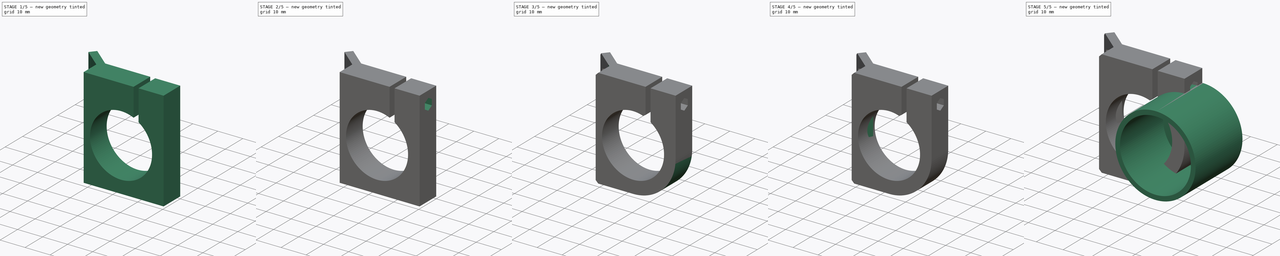
[diagram: build sequence overview — one tinted view per stage of 5, left to right]
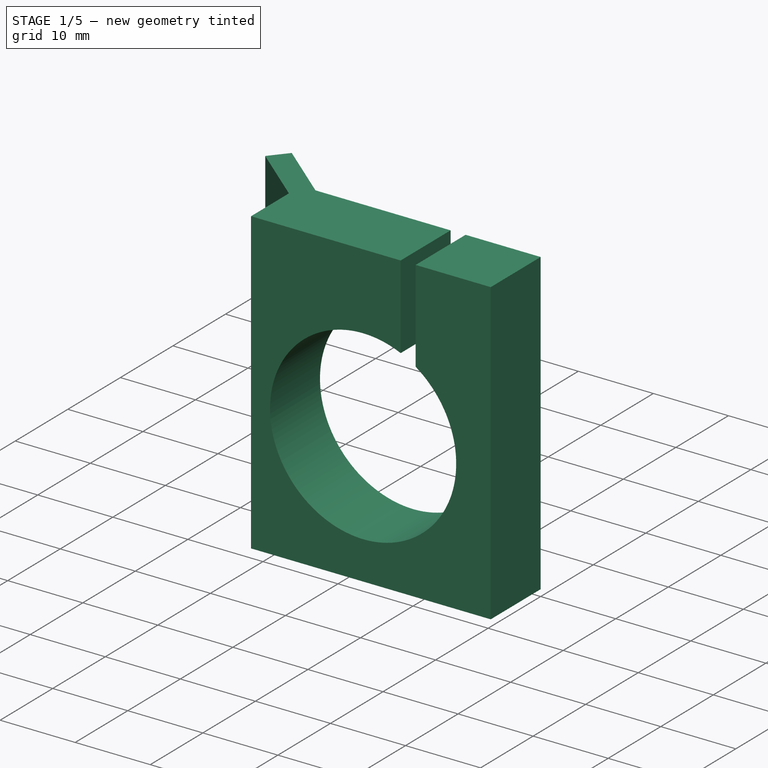
[diagram: stage 1 of 5 — iso view after this stage's code; geometry added in this stage tinted green]
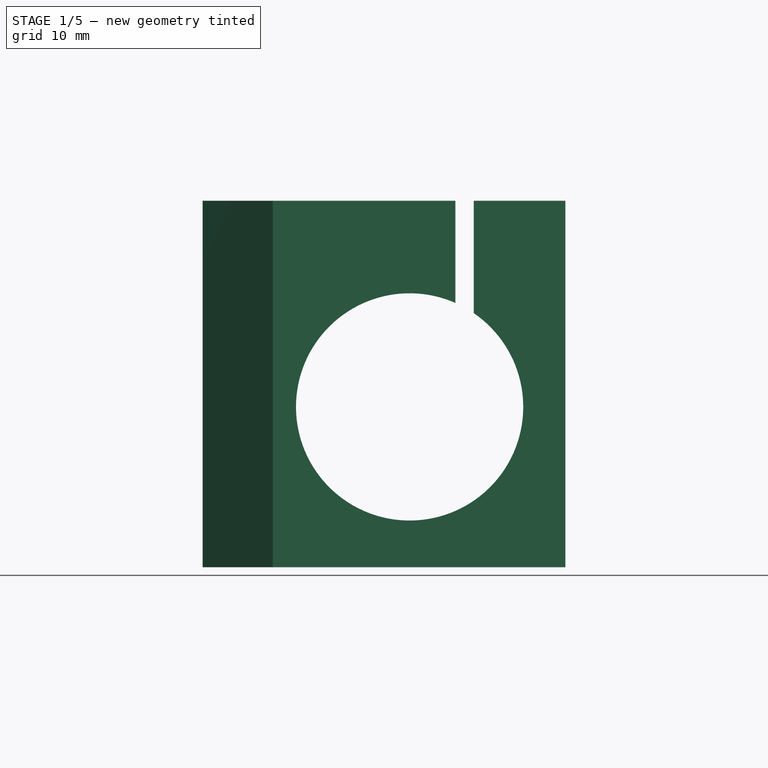
[diagram: stage 1 of 5 — front view after this stage's code; geometry added in this stage tinted green]
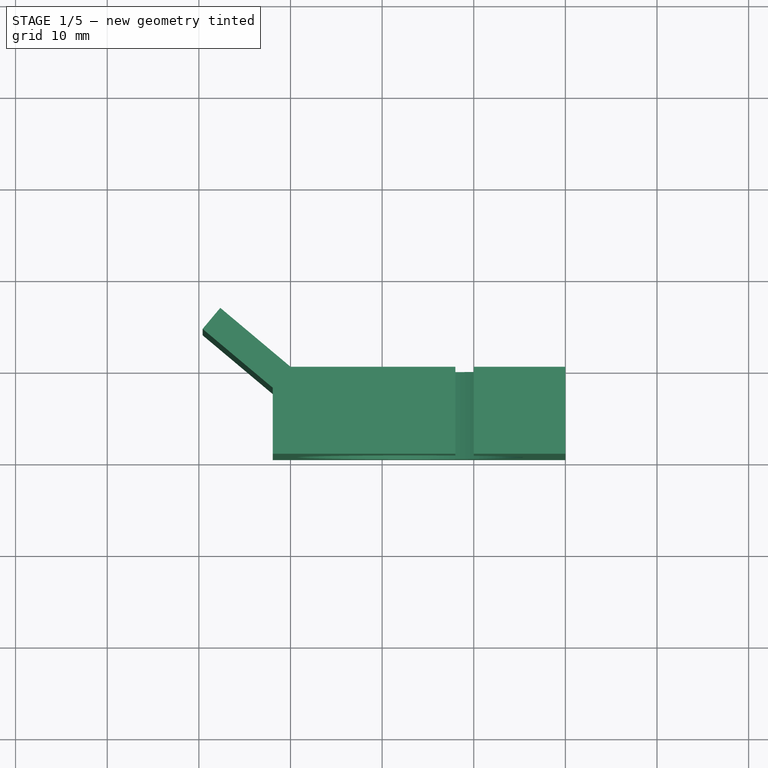
[diagram: stage 1 of 5 — top view after this stage's code; geometry added in this stage tinted green]
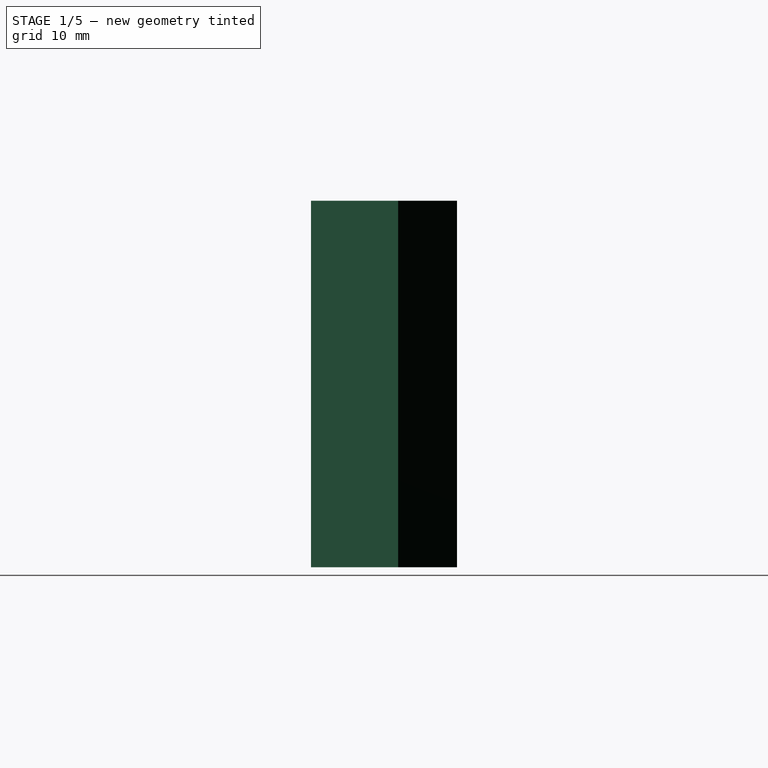
[diagram: stage 1 of 5 — right view after this stage's code; geometry added in this stage tinted green]
FCSTD DOCUMENT  (FreeCAD 0.19R)
Label: FrontStemMount
License: All rights reserved
LicenseURL: http://en.wikipedia.org/wiki/All_rights_reserved
objects: Sketcher::SketchObject×10, PartDesign::Pocket×7, PartDesign::Chamfer×5, PartDesign::Pad×3, PartDesign::Body×2, PartDesign::Fillet×1
note: 44 computed .brp shape members not serialized (recipe doc carries the construction recipe); baked Part::Feature solids carry a one-line shape summary decoded from their .brp

FEATURE [PartDesign::Body] Body
  Group = -> [Sketch,Pad,Sketch001,Pocket,Sketch002,Pocket001]
  Origin = -> Origin
  Tip = -> Pocket001
FEATURE [Sketcher::SketchObject] Sketch003
  FullyConstrained = true
  MapMode = 5
  Support = -> [XY_Plane001]
  sketch-geometry (7):
    g0: LineSegment StartX=-39.5888 StartY=4.12974 StartZ=0 EndX=-31.9284 EndY=-2.29813 EndZ=0
    g1: LineSegment StartX=-31.9284 StartY=-2.29813 StartZ=0 EndX=-31.9284 EndY=-9.5 EndZ=0
    g2: LineSegment StartX=-30 StartY=0 StartZ=0 EndX=-37.6604 EndY=6.42788 EndZ=0
    g3: LineSegment StartX=-37.6604 StartY=6.42788 StartZ=0 EndX=-39.5888 EndY=4.12974 EndZ=0
    g4: LineSegment StartX=-31.9284 StartY=-9.5 StartZ=0 EndX=0 EndY=-9.5 EndZ=0
    g5: LineSegment StartX=0 StartY=-9.5 StartZ=0 EndX=0 EndY=0 EndZ=0
    g6: LineSegment StartX=-30 StartY=0 StartZ=0 EndX=0 EndY=0 EndZ=0
  constraints (20):
    c: Coincident(g0,g1)
    c: Vertical(g1)
    c: Coincident(g2,g3)
    c: Coincident(g3,g0)
    c: Distance(g3) = 3
    c: Parallel(g2,g0)
    c: Perpendicular(g0,g3)
    c: Distance(g0) = 10
    c: Equal(g2,g0)
    c: Angle(g0) = -0.698132
    c: Coincident(g1,g4)
    c: Coincident(g4,g5)
    c: Vertical(g5)
    c: PointOnObject(g2,g-1)
    c: Coincident(g5,g-1)
    c: Coincident(g6,g5)
    c: Distance(g5) = 9.5
    c: Horizontal(g4)
    c: Coincident(g6,g2)
    c: Distance(g6) = 30
FEATURE [PartDesign::Pad] Pad001
  Direction = (1,1,1)
  Length = 40
  Length2 = 100
  Midplane = true
  Profile = -> Sketch003
  Type = 0
FEATURE [Sketcher::SketchObject] Sketch005
  FullyConstrained = true
  MapMode = 5
  Placement = pos=(0,0,0) rot=(0,0.707107,0.707107;3.14159rad)
  sketch-geometry (1):
    g0: Circle CenterX=17 CenterY=-2.5 CenterZ=0 NormalX=0 NormalY=0 NormalZ=1 AngleXU=0 Radius=12.4
  constraints (3):
    c: Diameter(g0) = 24.8
    c: DistanceX(g0) = 17
    c: DistanceY(g0) = -2.5
FEATURE [PartDesign::Pocket] Pocket002
  BaseFeature = -> Pad001
  Length = 5
  Length2 = 100
  Profile = -> Sketch005
  Type = 1
FEATURE [Sketcher::SketchObject] Sketch006
  FullyConstrained = false
  MapMode = 5
  Placement = pos=(0,0,0) rot=(0,0.707107,0.707107;3.14159rad)
  Support = -> [Pocket002]
  sketch-geometry (4):
    g0: LineSegment StartX=10 StartY=22.6764 StartZ=0 EndX=12 EndY=22.6764 EndZ=0
    g1: LineSegment StartX=12 StartY=22.6764 StartZ=0 EndX=12 EndY=5.62862 EndZ=0
    g2: LineSegment StartX=12 StartY=5.62862 StartZ=0 EndX=10 EndY=5.62862 EndZ=0
    g3: LineSegment StartX=10 StartY=5.62862 StartZ=0 EndX=10 EndY=22.6764 EndZ=0
  constraints (10):
    c: Coincident(g0,g1)
    c: Coincident(g1,g2)
    c: Coincident(g2,g3)
    c: Coincident(g3,g0)
    c: Horizontal(g0)
    c: Horizontal(g2)
    c: Vertical(g1)
    c: Vertical(g3)
    c: Distance(g0) = 2
    c: DistanceX(g0) = 10
FEATURE [PartDesign::Pocket] Pocket003
  BaseFeature = -> Pocket002
  Length = 5
  Length2 = 100
  Profile = -> Sketch006
  Type = 1
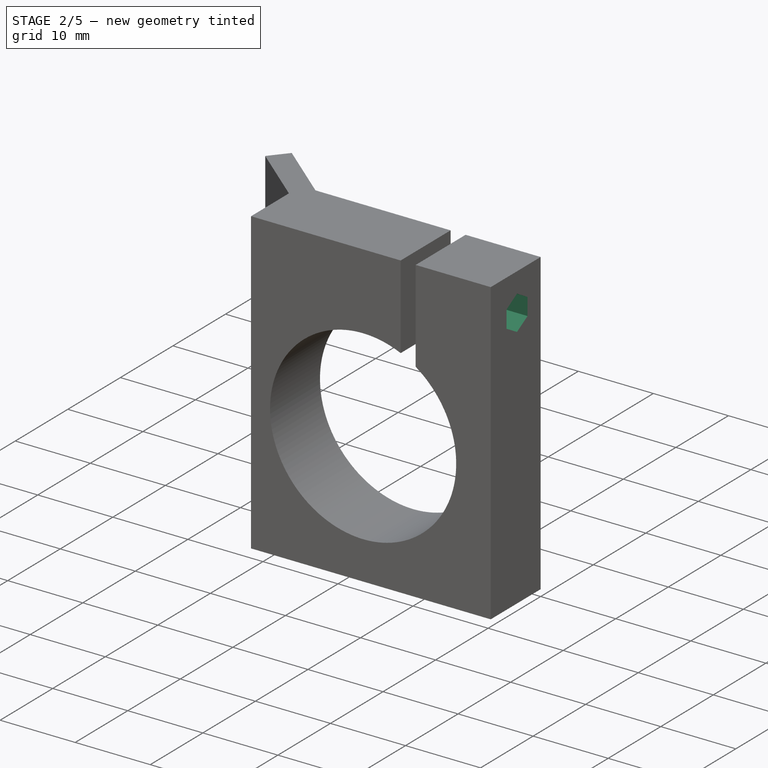
[diagram: stage 2 of 5 — iso view after this stage's code; geometry added in this stage tinted green]
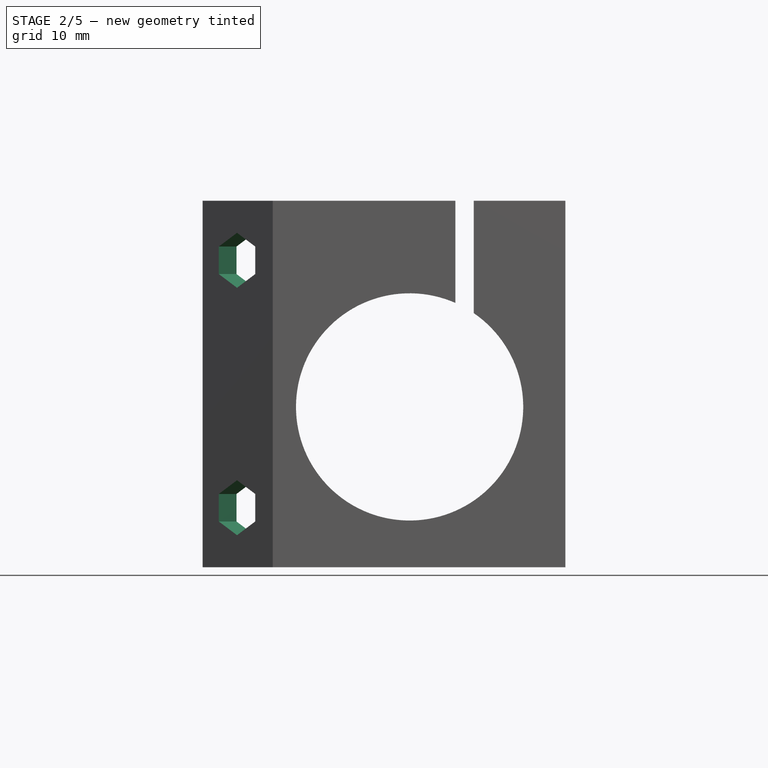
[diagram: stage 2 of 5 — front view after this stage's code; geometry added in this stage tinted green]
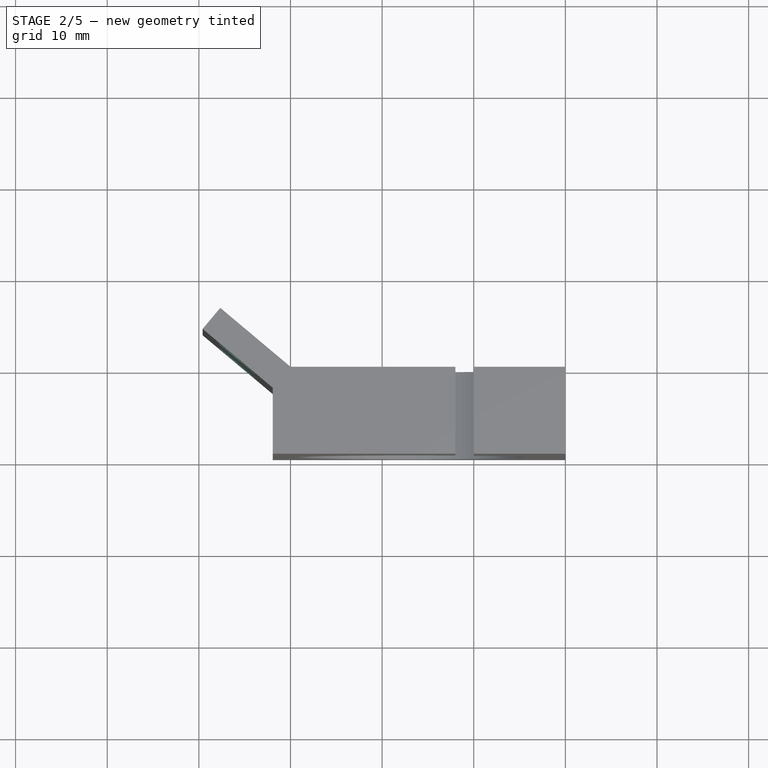
[diagram: stage 2 of 5 — top view after this stage's code; geometry added in this stage tinted green]
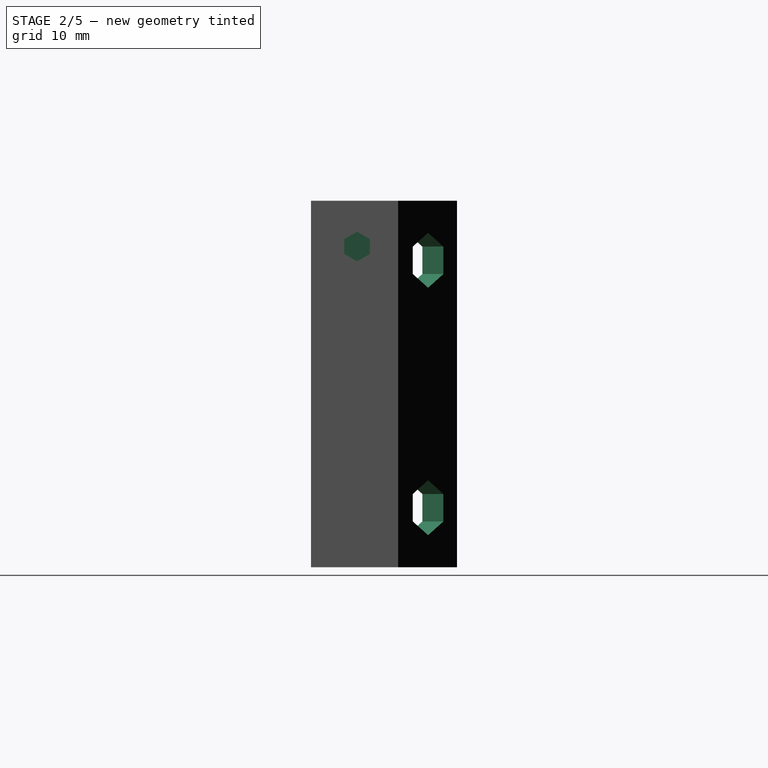
[diagram: stage 2 of 5 — right view after this stage's code; geometry added in this stage tinted green]
FEATURE [Sketcher::SketchObject] Sketch007
  FullyConstrained = true
  MapMode = 5
  Placement = pos=(0,0,0) rot=(0.57735,0.57735,0.57735;2.0944rad)
  Support = -> [Pocket003]
  sketch-geometry (7):
    g0: LineSegment StartX=-4.5 StartY=12.6906 StartZ=0 EndX=-2.5 EndY=13.8453 EndZ=0
    g1: LineSegment StartX=-2.5 StartY=13.8453 StartZ=0 EndX=-2.5 EndY=16.1547 EndZ=0
    g2: LineSegment StartX=-2.5 StartY=16.1547 StartZ=0 EndX=-4.5 EndY=17.3094 EndZ=0
    g3: LineSegment StartX=-4.5 StartY=17.3094 StartZ=0 EndX=-6.5 EndY=16.1547 EndZ=0
    g4: LineSegment StartX=-6.5 StartY=16.1547 StartZ=0 EndX=-6.5 EndY=13.8453 EndZ=0
    g5: LineSegment StartX=-6.5 StartY=13.8453 StartZ=0 EndX=-4.5 EndY=12.6906 EndZ=0
    g6: Circle CenterX=-4.5 CenterY=15 CenterZ=0 NormalX=0 NormalY=0 NormalZ=1 AngleXU=0 Radius=2.3094
  constraints (17):
    c: Coincident(g0,g1)
    c: Coincident(g1,g2)
    c: Coincident(g2,g3)
    c: Coincident(g3,g4)
    c: Coincident(g4,g5)
    c: Coincident(g5,g0)
    c: Equal(g0, g1-g5) x5
    c: PointOnObject(g0,g6)
    c: PointOnObject(g1,g6)
    c: PointOnObject(g2,g6)
    c: PointOnObject(g3,g6)
    c: PointOnObject(g4,g6)
    c: PointOnObject(g5,g6)
    c: Vertical(g1)
    c: DistanceX(g6) = -4.5
    c: Distance(g1,g3) = 4
    c: DistanceY(g6) = 15
FEATURE [PartDesign::Pocket] Pocket004
  BaseFeature = -> Pocket003
  Length = 11
  Length2 = 100
  Profile = -> Sketch007
  Type = 0
FEATURE [Sketcher::SketchObject] Sketch008
  FullyConstrained = false
  MapMode = 5
  Placement = pos=(0,0,0) rot=(0.57735,0.57735,0.57735;2.0944rad)
  Support = -> [Pocket004]
  sketch-geometry (7):
    g0: LineSegment StartX=-4.47412 StartY=13.3834 StartZ=0 EndX=-3.07412 EndY=14.1917 EndZ=0
    g1: LineSegment StartX=-3.07412 StartY=14.1917 StartZ=0 EndX=-3.07412 EndY=15.8083 EndZ=0
    g2: LineSegment StartX=-3.07412 StartY=15.8083 StartZ=0 EndX=-4.47412 EndY=16.6166 EndZ=0
    g3: LineSegment StartX=-4.47412 StartY=16.6166 StartZ=0 EndX=-5.87412 EndY=15.8083 EndZ=0
    g4: LineSegment StartX=-5.87412 StartY=15.8083 StartZ=0 EndX=-5.87412 EndY=14.1917 EndZ=0
    g5: LineSegment StartX=-5.87412 StartY=14.1917 StartZ=0 EndX=-4.47412 EndY=13.3834 EndZ=0
    g6: Circle CenterX=-4.47412 CenterY=15 CenterZ=0 NormalX=0 NormalY=0 NormalZ=1 AngleXU=0 Radius=1.61658
  constraints (16):
    c: Coincident(g0,g1)
    c: Coincident(g1,g2)
    c: Coincident(g2,g3)
    c: Coincident(g3,g4)
    c: Coincident(g4,g5)
    c: Coincident(g5,g0)
    c: Equal(g0, g1-g5) x5
    c: PointOnObject(g0,g6)
    c: PointOnObject(g1,g6)
    c: PointOnObject(g2,g6)
    c: PointOnObject(g3,g6)
    c: PointOnObject(g4,g6)
    c: PointOnObject(g5,g6)
    c: Vertical(g4)
    c: Distance(g1,g3) = 2.8
    c: DistanceY(g6) = 15
FEATURE [PartDesign::Pocket] Pocket005
  BaseFeature = -> Pocket004
  Length = 25
  Length2 = 100
  Profile = -> Sketch008
  Type = 0
FEATURE [Sketcher::SketchObject] Sketch004
  ExternalGeometry = -> [Pocket005]
  FullyConstrained = true
  MapMode = 5
  Placement = pos=(-14.3236,-17.0702,0) rot=(0.889126,-0.323616,-0.323616;1.68804rad)
  Support = -> [Pocket005]
  sketch-geometry (14):
    g0: LineSegment StartX=-28.0794 StartY=10.5 StartZ=0 EndX=-25.4813 EndY=12 EndZ=0
    g1: LineSegment StartX=-25.4813 StartY=12 StartZ=0 EndX=-25.4813 EndY=15 EndZ=0
    g2: LineSegment StartX=-25.4813 StartY=15 StartZ=0 EndX=-28.0794 EndY=16.5 EndZ=0
    g3: LineSegment StartX=-28.0794 StartY=16.5 StartZ=0 EndX=-30.6775 EndY=15 EndZ=0
    g4: LineSegment StartX=-30.6775 StartY=15 StartZ=0 EndX=-30.6775 EndY=12 EndZ=0
    g5: LineSegment StartX=-30.6775 StartY=12 StartZ=0 EndX=-28.0794 EndY=10.5 EndZ=0
    g6: Circle CenterX=-28.0794 CenterY=13.5 CenterZ=0 NormalX=0 NormalY=0 NormalZ=1 AngleXU=0 Radius=3
    g7: LineSegment StartX=-28.0794 StartY=-16.5 StartZ=0 EndX=-25.4813 EndY=-15 EndZ=0
    g8: LineSegment StartX=-25.4813 StartY=-15 StartZ=0 EndX=-25.4813 EndY=-12 EndZ=0
    g9: LineSegment StartX=-25.4813 StartY=-12 StartZ=0 EndX=-28.0794 EndY=-10.5 EndZ=0
    g10: LineSegment StartX=-28.0794 StartY=-10.5 StartZ=0 EndX=-30.6775 EndY=-12 EndZ=0
    g11: LineSegment StartX=-30.6775 StartY=-12 StartZ=0 EndX=-30.6775 EndY=-15 EndZ=0
    g12: LineSegment StartX=-30.6775 StartY=-15 StartZ=0 EndX=-28.0794 EndY=-16.5 EndZ=0
    g13: Circle CenterX=-28.0794 CenterY=-13.5 CenterZ=0 NormalX=0 NormalY=0 NormalZ=1 AngleXU=0 Radius=3
  constraints (33):
    c: Coincident(g0,g1)
    c: Coincident(g1,g2)
    c: Coincident(g2,g3)
    c: Coincident(g3,g4)
    c: Coincident(g4,g5)
    c: Coincident(g5,g0)
    c: Equal(g0, g1-g5) x5
    c: PointOnObject(g0,g6)
    c: PointOnObject(g1,g6)
    c: PointOnObject(g2,g6)
    c: PointOnObject(g3,g6)
    c: PointOnObject(g4,g6)
    c: PointOnObject(g5,g6)
    c: Coincident(g7,g8)
    c: Coincident(g8,g9)
    c: Coincident(g9,g10)
    c: Coincident(g10,g11)
    c: Coincident(g11,g12)
    c: Coincident(g12,g7)
    c: Equal(g7, g8-g12) x5
    c: PointOnObject(g7,g13)
    c: PointOnObject(g8,g13)
    c: PointOnObject(g9,g13)
    c: PointOnObject(g10,g13)
    c: PointOnObject(g11,g13)
    c: PointOnObject(g12,g13)
    c: Symmetric(g13,g6,g-1)
    c: Diameter(g6) = 6
    c: Equal(g6,g13)
    c: Vertical(g1)
    c: Vertical(g8)
    c: Distance(g13,g6) = 27
    c: Distance(g0,g-3) = 2.5
FEATURE [PartDesign::Pocket] Pocket006
  BaseFeature = -> Pocket005
  Length = 5
  Length2 = 100
  Profile = -> Sketch004
  Type = 0
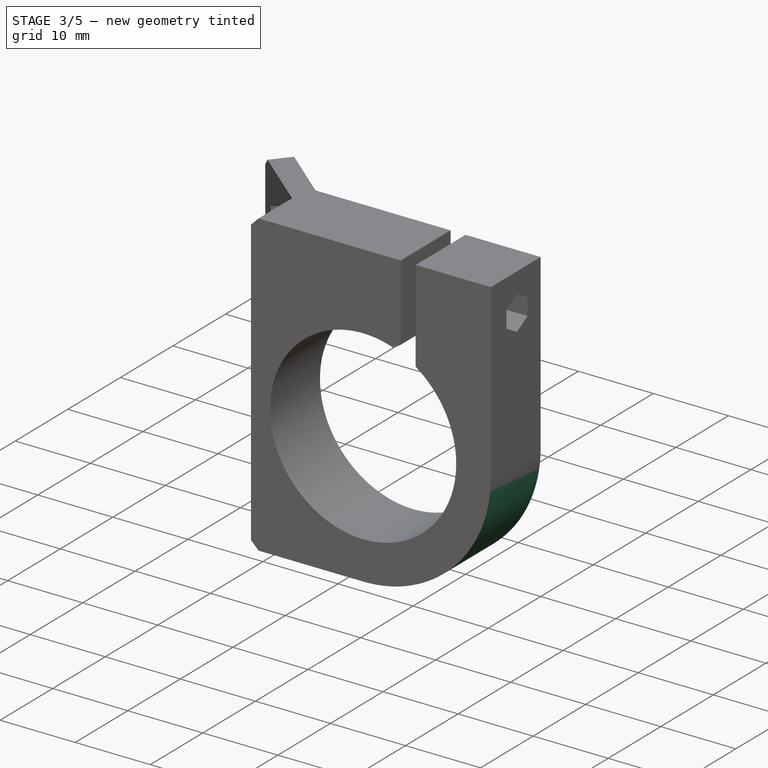
[diagram: stage 3 of 5 — iso view after this stage's code; geometry added in this stage tinted green]
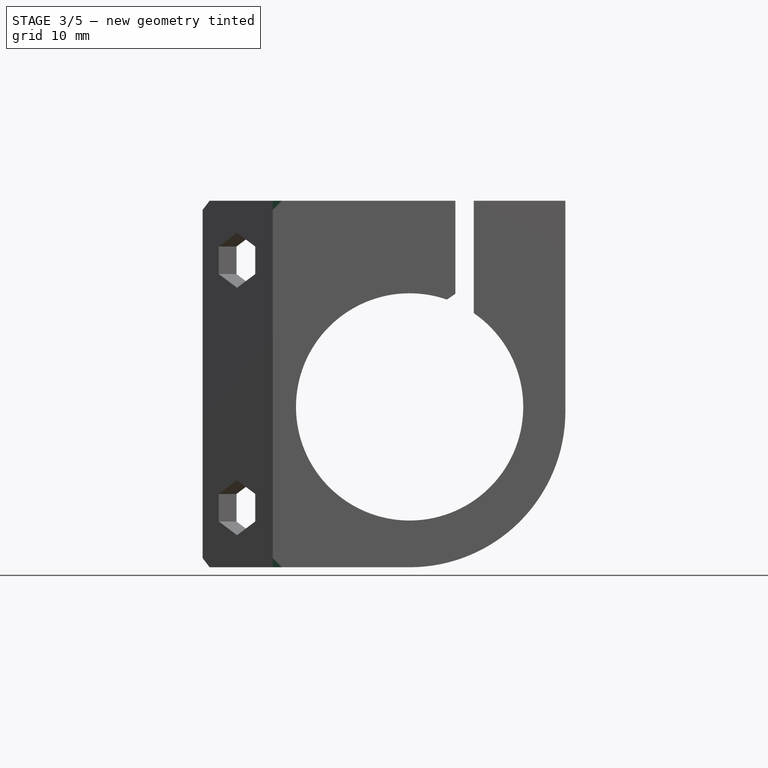
[diagram: stage 3 of 5 — front view after this stage's code; geometry added in this stage tinted green]
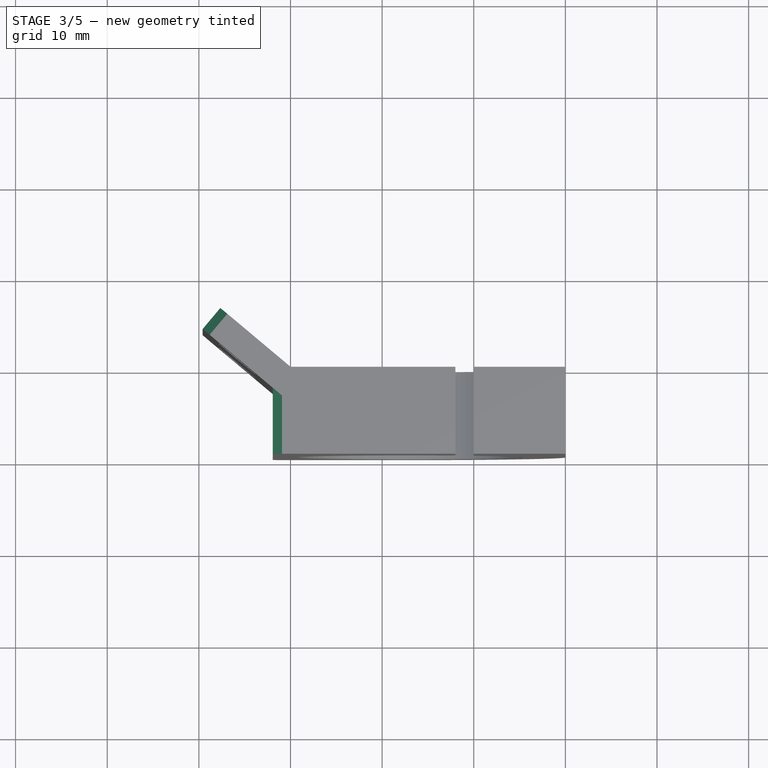
[diagram: stage 3 of 5 — top view after this stage's code; geometry added in this stage tinted green]
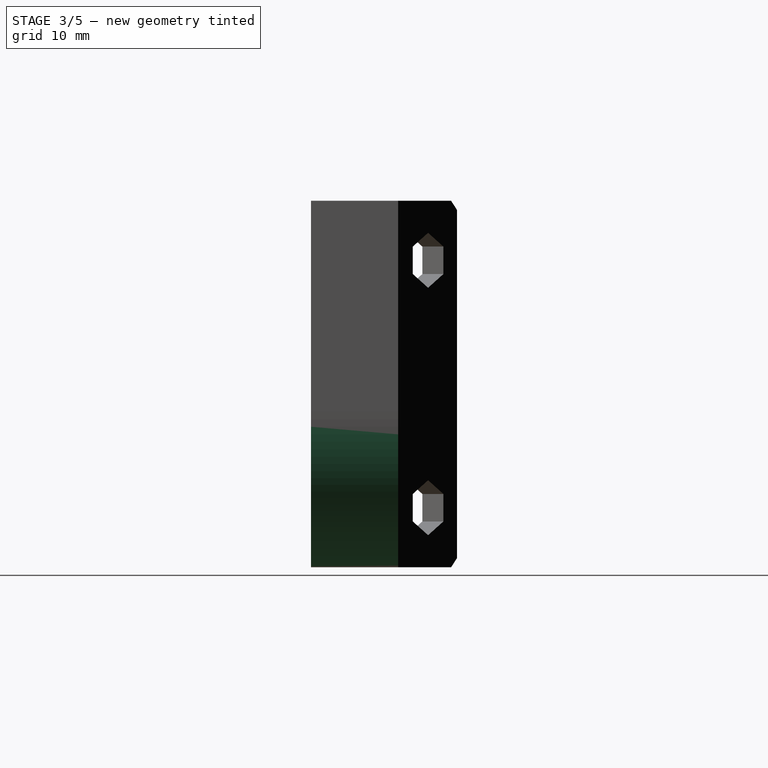
[diagram: stage 3 of 5 — right view after this stage's code; geometry added in this stage tinted green]
FEATURE [PartDesign::Fillet] Fillet
  Base = -> Pocket006 [Edge29]
  BaseFeature = -> Pocket006
  Radius = 17
  SupportTransform = false
FEATURE [PartDesign::Chamfer] Chamfer
  Angle = 45
  Base = -> Fillet [Edge16,Edge45]
  BaseFeature = -> Fillet
  ChamferType = 0
  FlipDirection = false
  Size = 1
  Size2 = 1
  SupportTransform = false
FEATURE [PartDesign::Chamfer] Chamfer001
  Angle = 45
  Base = -> Chamfer [Edge3,Edge28]
  BaseFeature = -> Chamfer
  ChamferType = 0
  FlipDirection = false
  Size = 1
  Size2 = 1
  SupportTransform = false
FEATURE [PartDesign::Chamfer] Chamfer002
  Angle = 45
  Base = -> Chamfer001 [Edge87]
  BaseFeature = -> Chamfer001
  ChamferType = 0
  FlipDirection = false
  Size = 1
  Size2 = 1
  SupportTransform = false
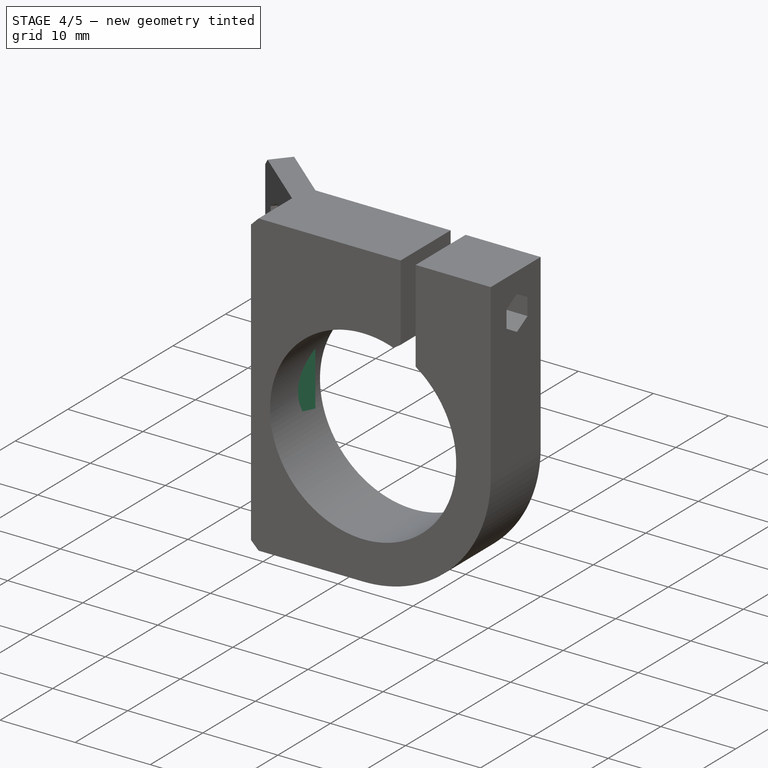
[diagram: stage 4 of 5 — iso view after this stage's code; geometry added in this stage tinted green]
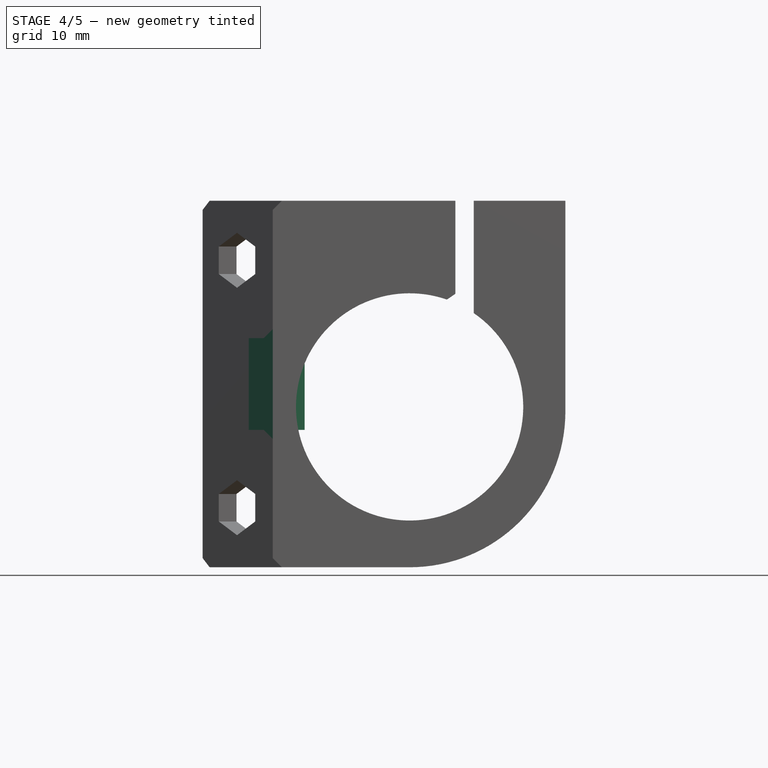
[diagram: stage 4 of 5 — front view after this stage's code; geometry added in this stage tinted green]
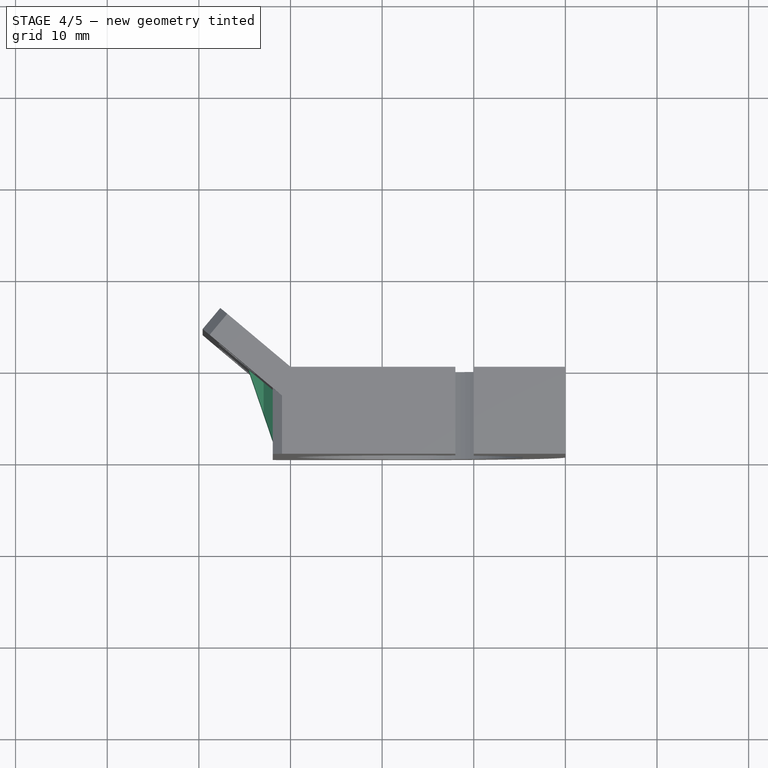
[diagram: stage 4 of 5 — top view after this stage's code; geometry added in this stage tinted green]
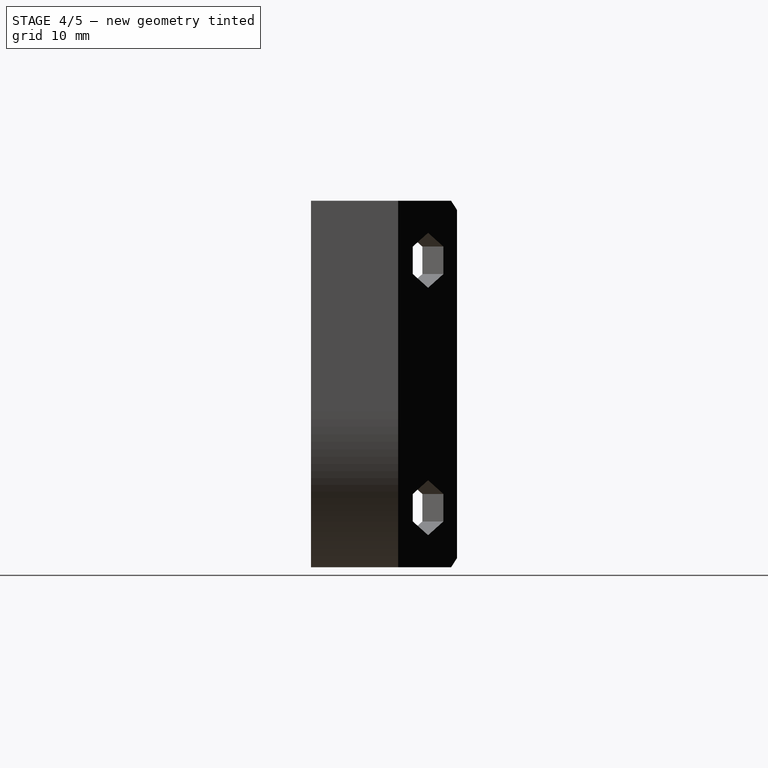
[diagram: stage 4 of 5 — right view after this stage's code; geometry added in this stage tinted green]
FEATURE [Sketcher::SketchObject] Sketch009
  FullyConstrained = false
  MapMode = 5
  Support = -> [XY_Plane001]
  sketch-geometry (3):
    g0: LineSegment StartX=-34.7959 StartY=0.607884 StartZ=0 EndX=-31.5821 EndY=-8.77433 EndZ=0
    g1: LineSegment StartX=-31.5821 StartY=-8.77433 StartZ=0 EndX=-28.4564 EndY=-2.21608 EndZ=0
    g2: LineSegment StartX=-28.4564 StartY=-2.21608 StartZ=0 EndX=-34.7959 EndY=0.607884 EndZ=0
  constraints (3):
    c: Coincident(g0,g1)
    c: Coincident(g1,g2)
    c: Coincident(g2,g0)
FEATURE [PartDesign::Pad] Pad002
  BaseFeature = -> Chamfer002
  Direction = (1,1,1)
  Length = 10
  Length2 = 100
  Midplane = true
  Profile = -> Sketch009
  Type = 0
FEATURE [PartDesign::Chamfer] Chamfer003
  Angle = 45
  Base = -> Pad002 [Edge45]
  BaseFeature = -> Pad002
  ChamferType = 0
  FlipDirection = false
  Size = 1
  Size2 = 1
  SupportTransform = false
FEATURE [PartDesign::Chamfer] Chamfer004
  Angle = 45
  Base = -> Chamfer003 [Edge8]
  BaseFeature = -> Chamfer003
  ChamferType = 0
  FlipDirection = false
  Size = 1
  Size2 = 1
  SupportTransform = false
FEATURE [PartDesign::Body] Body001
  Group = -> [Sketch003,Pad001,Sketch004,Sketch005,Pocket002,Sketch006,Pocket003,Sketch007,Pocket004,Sketch008,Pocket005,Pocket006,Fillet,Chamfer,Chamfer001,Chamfer002,Sketch009,Pad002,Chamfer003,Chamfer004]
  Origin = -> Origin001
  Tip = -> Chamfer004
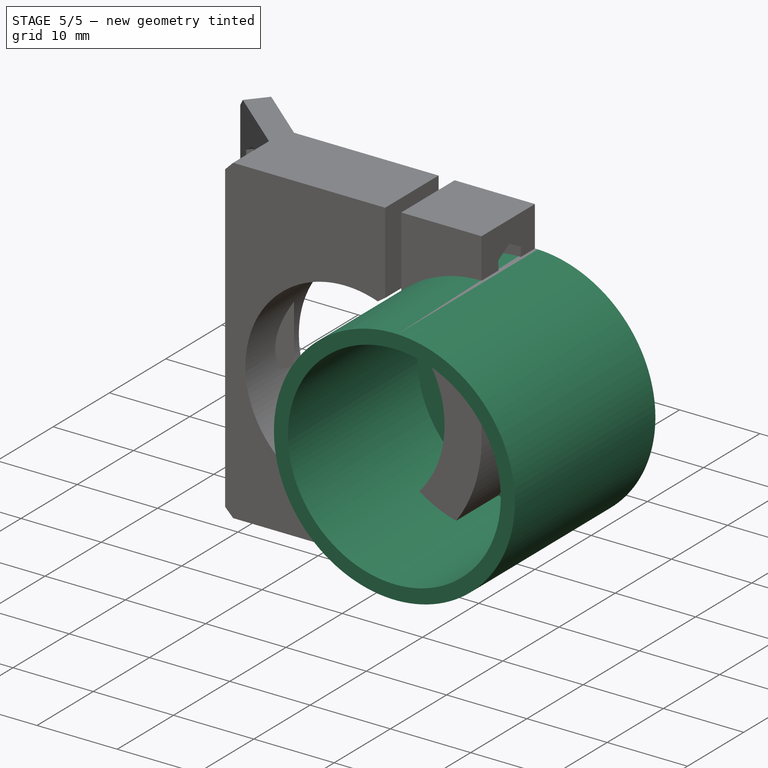
[diagram: stage 5 of 5 — iso view after this stage's code; geometry added in this stage tinted green]
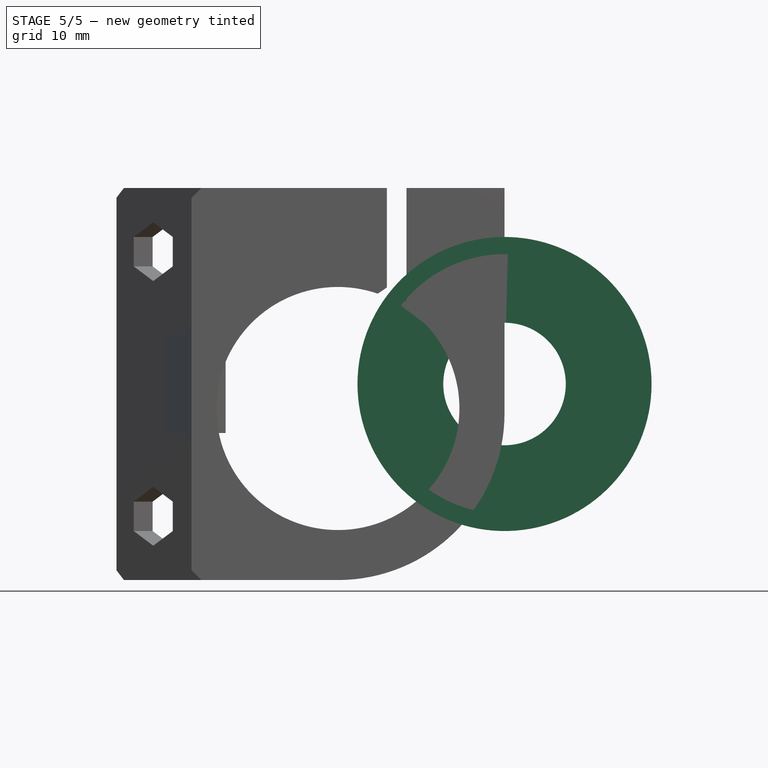
[diagram: stage 5 of 5 — front view after this stage's code; geometry added in this stage tinted green]
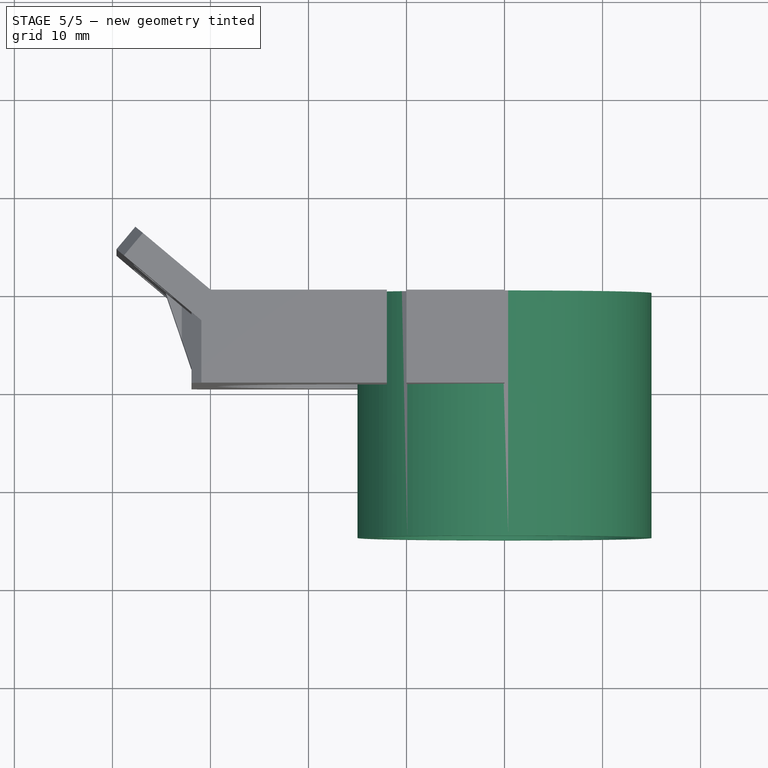
[diagram: stage 5 of 5 — top view after this stage's code; geometry added in this stage tinted green]
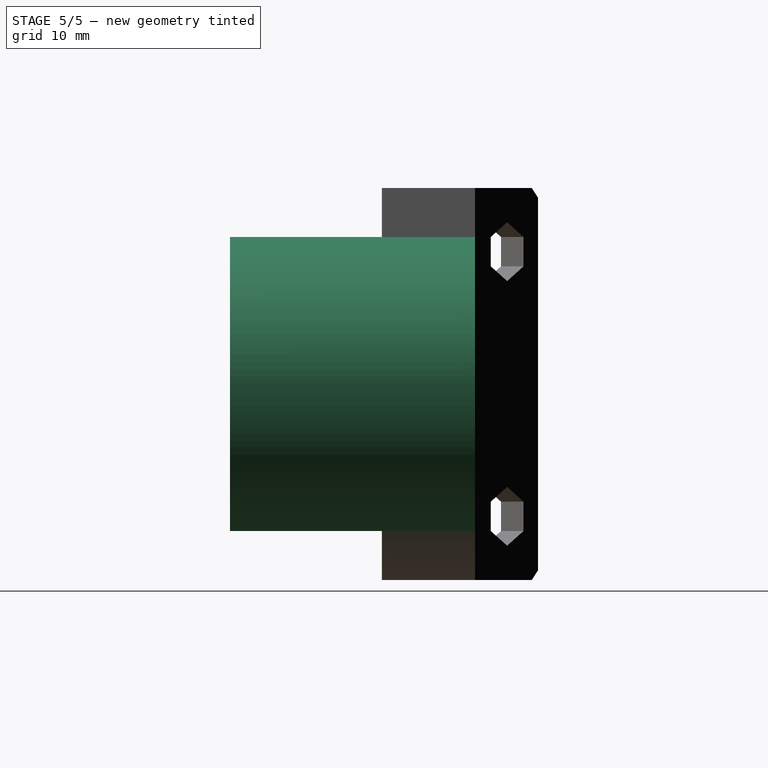
[diagram: stage 5 of 5 — right view after this stage's code; geometry added in this stage tinted green]
FEATURE [Sketcher::SketchObject] Sketch
  FullyConstrained = true
  MapMode = 5
  Placement = pos=(0,0,0) rot=(1,0,0;1.5708rad)
  Support = -> [XZ_Plane]
  sketch-geometry (1):
    g0: Circle CenterX=0 CenterY=0 CenterZ=0 NormalX=0 NormalY=0 NormalZ=1 AngleXU=0 Radius=15
  constraints (2):
    c: Coincident(g0,g-1)
    c: Diameter(g0) = 30
FEATURE [PartDesign::Pad] Pad
  Direction = (1,1,1)
  Length = 25
  Length2 = 100
  Placement = pos=(0,0,0) rot=(1,0,0;1.5708rad)
  Profile = -> Sketch
  Type = 0
FEATURE [Sketcher::SketchObject] Sketch001
  FullyConstrained = true
  MapMode = 5
  Placement = pos=(0,-25,1.67e-14) rot=(1,0,0;1.5708rad)
  Support = -> [Pad]
  sketch-geometry (1):
    g0: Circle CenterX=0 CenterY=0 CenterZ=0 NormalX=0 NormalY=0 NormalZ=1 AngleXU=0 Radius=13.25
  constraints (2):
    c: Coincident(g0,g-1)
    c: Diameter(g0) = 26.5
FEATURE [PartDesign::Pocket] Pocket
  BaseFeature = -> Pad
  Length = 23
  Length2 = 100
  Placement = pos=(0,0,0) rot=(1,0,0;1.5708rad)
  Profile = -> Sketch001
  Type = 0
FEATURE [Sketcher::SketchObject] Sketch002
  FullyConstrained = true
  MapMode = 5
  Placement = pos=(0,0,0) rot=(-1,0,0;1.5708rad)
  Support = -> [Pocket]
  sketch-geometry (1):
    g0: Circle CenterX=0 CenterY=0 CenterZ=0 NormalX=0 NormalY=0 NormalZ=1 AngleXU=0 Radius=6.25
  constraints (2):
    c: Coincident(g0,g-1)
    c: Diameter(g0) = 12.5
FEATURE [PartDesign::Pocket] Pocket001
  BaseFeature = -> Pocket
  Length = 5
  Length2 = 100
  Placement = pos=(0,0,0) rot=(1,0,0;1.5708rad)
  Profile = -> Sketch002
  Type = 0
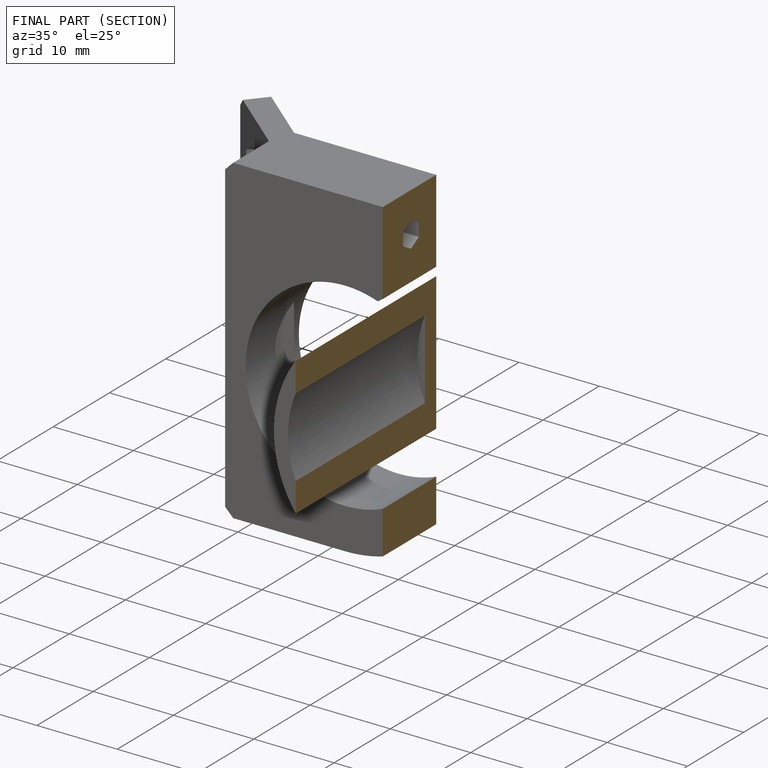
[diagram: finished part — half-section view (interior)]
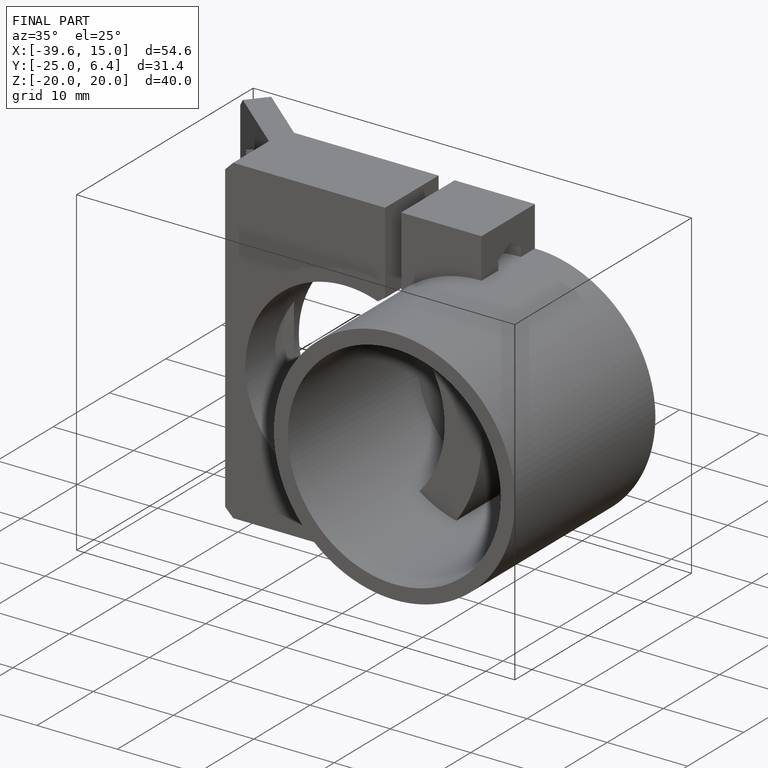
[diagram: finished part — iso view with bounding-box wireframe]
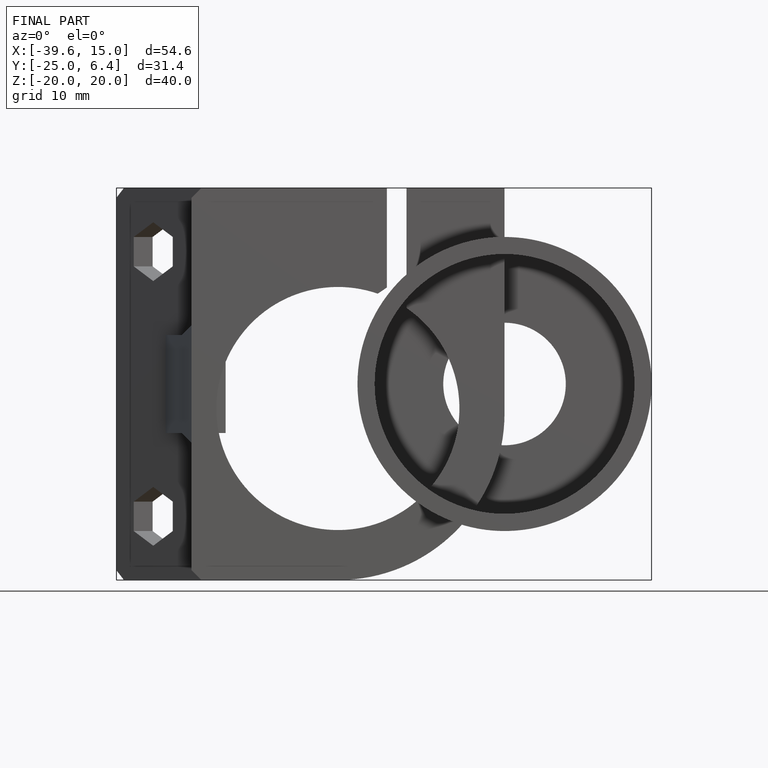
[diagram: finished part — front view with bounding-box wireframe]
